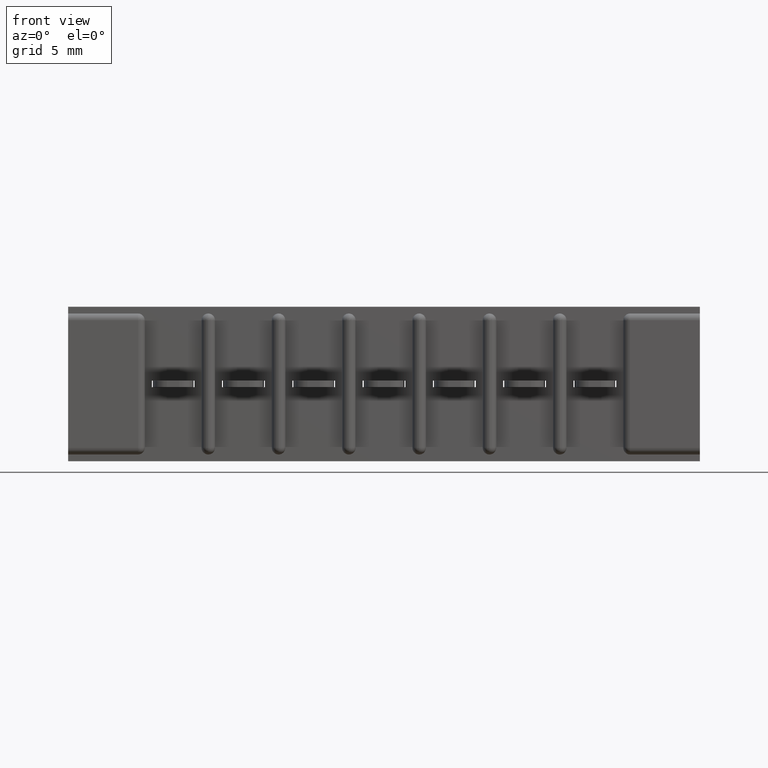
[diagram: clean part render]
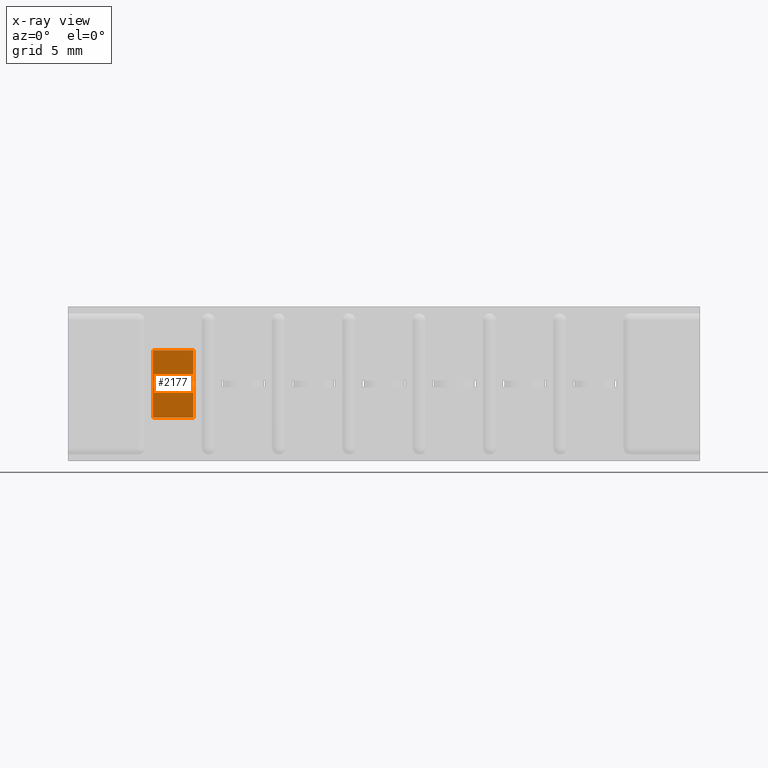
[diagram: x-ray — body ghosted, one internal face saturated and labeled with its STEP entity id]
A machine part, front view, then the same camera in x-ray: the body is ghosted and one INTERNAL B-rep face — a face not visible from any outside direction — is saturated and labeled: STEP entity #2177.
In plain terms, the highlighted planar face has unit normal (-0, 1, -0).
Its self-contained STEP definition (entity closure, byte-faithful):
#105 = EDGE_CURVE ( 'NONE', #2861, #6889, #3075, .T. ) ;
#234 = EDGE_CURVE ( 'NONE', #2529, #3076, #2644, .T. ) ;
#278 = EDGE_CURVE ( 'NONE', #3112, #6360, #2465, .T. ) ;
#281 = EDGE_CURVE ( 'NONE', #6360, #6405, #2498, .T. ) ;
#284 = EDGE_CURVE ( 'NONE', #6405, #7270, #2479, .T. ) ;
#306 = EDGE_CURVE ( 'NONE', #7270, #3112, #2420, .T. ) ;
#307 = EDGE_CURVE ( 'NONE', #6889, #2529, #2434, .T. ) ;
#480 = EDGE_CURVE ( 'NONE', #3076, #2861, #1797, .T. ) ;
#688 = DIRECTION ( 'NONE',  ( 1.551405903681916400E-027, 4.319416009178338500E-029, 1.000000000000000000 ) ) ;
#1797 = LINE ( 'NONE', #5690, #1920 ) ;
#1920 = VECTOR ( 'NONE', #7296, 39.37007874015748100 ) ;
#2177 = ADVANCED_FACE ( 'NONE', ( #9110, #10805 ), #7424, .F. ) ;
#2368 = VECTOR ( 'NONE', #2623, 39.37007874015748100 ) ;
#2384 = VECTOR ( 'NONE', #10357, 39.37007874015748100 ) ;
#2408 = VECTOR ( 'NONE', #6209, 39.37007874015748100 ) ;
#2420 = LINE ( 'NONE', #4395, #2384 ) ;
#2434 = LINE ( 'NONE', #2907, #2368 ) ;
#2447 = VECTOR ( 'NONE', #4249, 39.37007874015748100 ) ;
#2465 = LINE ( 'NONE', #5840, #2447 ) ;
#2479 = LINE ( 'NONE', #9995, #2408 ) ;
#2481 = DIRECTION ( 'NONE',  ( -1.551405903681916400E-027, -4.319416009178338500E-029, -1.000000000000000000 ) ) ;
#2498 = LINE ( 'NONE', #8458, #2520 ) ;
#2520 = VECTOR ( 'NONE', #9070, 39.37007874015748100 ) ;
#2529 = VERTEX_POINT ( 'NONE', #8199 ) ;
#2596 = VECTOR ( 'NONE', #688, 39.37007874015748100 ) ;
#2623 = DIRECTION ( 'NONE',  ( 1.000000000000000000, 0.0000000000000000000, 1.551405903681916400E-027 ) ) ;
#2644 = LINE ( 'NONE', #4287, #2596 ) ;
#2861 = VERTEX_POINT ( 'NONE', #9130 ) ;
#2907 = CARTESIAN_POINT ( 'NONE',  ( -0.007499999999995071400, 0.0000000000000000000, -0.04349999999999968500 ) ) ;
#3052 = VECTOR ( 'NONE', #2481, 39.37007874015748100 ) ;
#3075 = LINE ( 'NONE', #6662, #3052 ) ;
#3076 = VERTEX_POINT ( 'NONE', #7012 ) ;
#3112 = VERTEX_POINT ( 'NONE', #8909 ) ;
#3615 = ORIENTED_EDGE ( 'NONE', *, *, #480, .F. ) ;
#4249 = DIRECTION ( 'NONE',  ( -1.000000000000000000, 0.0000000000000000000, -1.551405903681916400E-027 ) ) ;
#4287 = CARTESIAN_POINT ( 'NONE',  ( 0.007500000000004939300, 0.0000000000000000000, -0.04349999999999968500 ) ) ;
#4395 = CARTESIAN_POINT ( 'NONE',  ( 0.07500000000002371400, 2.239432392806279700E-013, -0.04500000000000020000 ) ) ;
#5690 = CARTESIAN_POINT ( 'NONE',  ( -0.007500000000075250300, 0.0000000000000000000, 0.04350000000000078100 ) ) ;
#5840 = CARTESIAN_POINT ( 'NONE',  ( -0.07499999999997052100, -3.491301735902928400E-013, -0.04500000000000020000 ) ) ;
#5929 = ORIENTED_EDGE ( 'NONE', *, *, #234, .F. ) ;
#5997 = ORIENTED_EDGE ( 'NONE', *, *, #278, .F. ) ;
#6112 = ORIENTED_EDGE ( 'NONE', *, *, #284, .F. ) ;
#6204 = ORIENTED_EDGE ( 'NONE', *, *, #281, .F. ) ;
#6209 = DIRECTION ( 'NONE',  ( 1.000000000000000000, 0.0000000000000000000, 1.551405903681916400E-027 ) ) ;
#6214 = ORIENTED_EDGE ( 'NONE', *, *, #105, .F. ) ;
#6360 = VERTEX_POINT ( 'NONE', #8410 ) ;
#6375 = CARTESIAN_POINT ( 'NONE',  ( -0.007499999999995071400, 0.0000000000000000000, -0.04349999999999968500 ) ) ;
#6405 = VERTEX_POINT ( 'NONE', #7624 ) ;
#6523 = CARTESIAN_POINT ( 'NONE',  ( 0.07499999999998759000, 2.239432392806279700E-013, 0.04500000000000020000 ) ) ;
#6662 = CARTESIAN_POINT ( 'NONE',  ( -0.007499999999995071400, 0.0000000000000000000, -0.04349999999999968500 ) ) ;
#6771 = ORIENTED_EDGE ( 'NONE', *, *, #307, .F. ) ;
#6889 = VERTEX_POINT ( 'NONE', #6375 ) ;
#7012 = CARTESIAN_POINT ( 'NONE',  ( 0.007499999999924760400, 0.0000000000000000000, 0.04350000000000078100 ) ) ;
#7270 = VERTEX_POINT ( 'NONE', #6523 ) ;
#7296 = DIRECTION ( 'NONE',  ( -1.000000000000000000, 0.0000000000000000000, -1.551405903681916400E-027 ) ) ;
#7424 = PLANE ( 'NONE',  #9146 ) ;
#7462 = CARTESIAN_POINT ( 'NONE',  ( 0.07499999999998759000, 2.239432392806279700E-013, 0.04500000000000020000 ) ) ;
#7624 = CARTESIAN_POINT ( 'NONE',  ( -0.07500000000002883500, -3.491301735902928400E-013, 0.04500000000000020000 ) ) ;
#7745 = ORIENTED_EDGE ( 'NONE', *, *, #306, .F. ) ;
#8199 = CARTESIAN_POINT ( 'NONE',  ( 0.007500000000004939300, 0.0000000000000000000, -0.04349999999999968500 ) ) ;
#8410 = CARTESIAN_POINT ( 'NONE',  ( -0.07499999999997052100, -3.491301735902928400E-013, -0.04500000000000020000 ) ) ;
#8458 = CARTESIAN_POINT ( 'NONE',  ( -0.07499999999997052100, -3.491301735902928400E-013, -0.04500000000000020000 ) ) ;
#8909 = CARTESIAN_POINT ( 'NONE',  ( 0.07500000000002371400, 2.239432392806279700E-013, -0.04500000000000020000 ) ) ;
#9070 = DIRECTION ( 'NONE',  ( 7.588466649067397800E-016, 4.319416009174016300E-029, 1.000000000000000000 ) ) ;
#9110 = FACE_OUTER_BOUND ( 'NONE', #10105, .T. ) ;
#9130 = CARTESIAN_POINT ( 'NONE',  ( -0.007500000000075250300, 0.0000000000000000000, 0.04350000000000078100 ) ) ;
#9146 = AXIS2_PLACEMENT_3D ( 'NONE', #7462, #10013, #10015 ) ;
#9995 = CARTESIAN_POINT ( 'NONE',  ( -0.07500000000002883500, -3.491301735902928400E-013, 0.04500000000000020000 ) ) ;
#10013 = DIRECTION ( 'NONE',  ( -1.340233499419604300E-055, 1.000000000000000000, -4.319416009178338500E-029 ) ) ;
#10015 = DIRECTION ( 'NONE',  ( 1.551405903681916400E-027, 4.319416009178338500E-029, 1.000000000000000000 ) ) ;
#10105 = EDGE_LOOP ( 'NONE', ( #7745, #6112, #6204, #5997 ) ) ;
#10299 = EDGE_LOOP ( 'NONE', ( #5929, #6771, #6214, #3615 ) ) ;
#10357 = DIRECTION ( 'NONE',  ( 7.588466649067397800E-016, -4.319416009179071100E-029, -1.000000000000000000 ) ) ;
#10805 = FACE_BOUND ( 'NONE', #10299, .T. ) ;